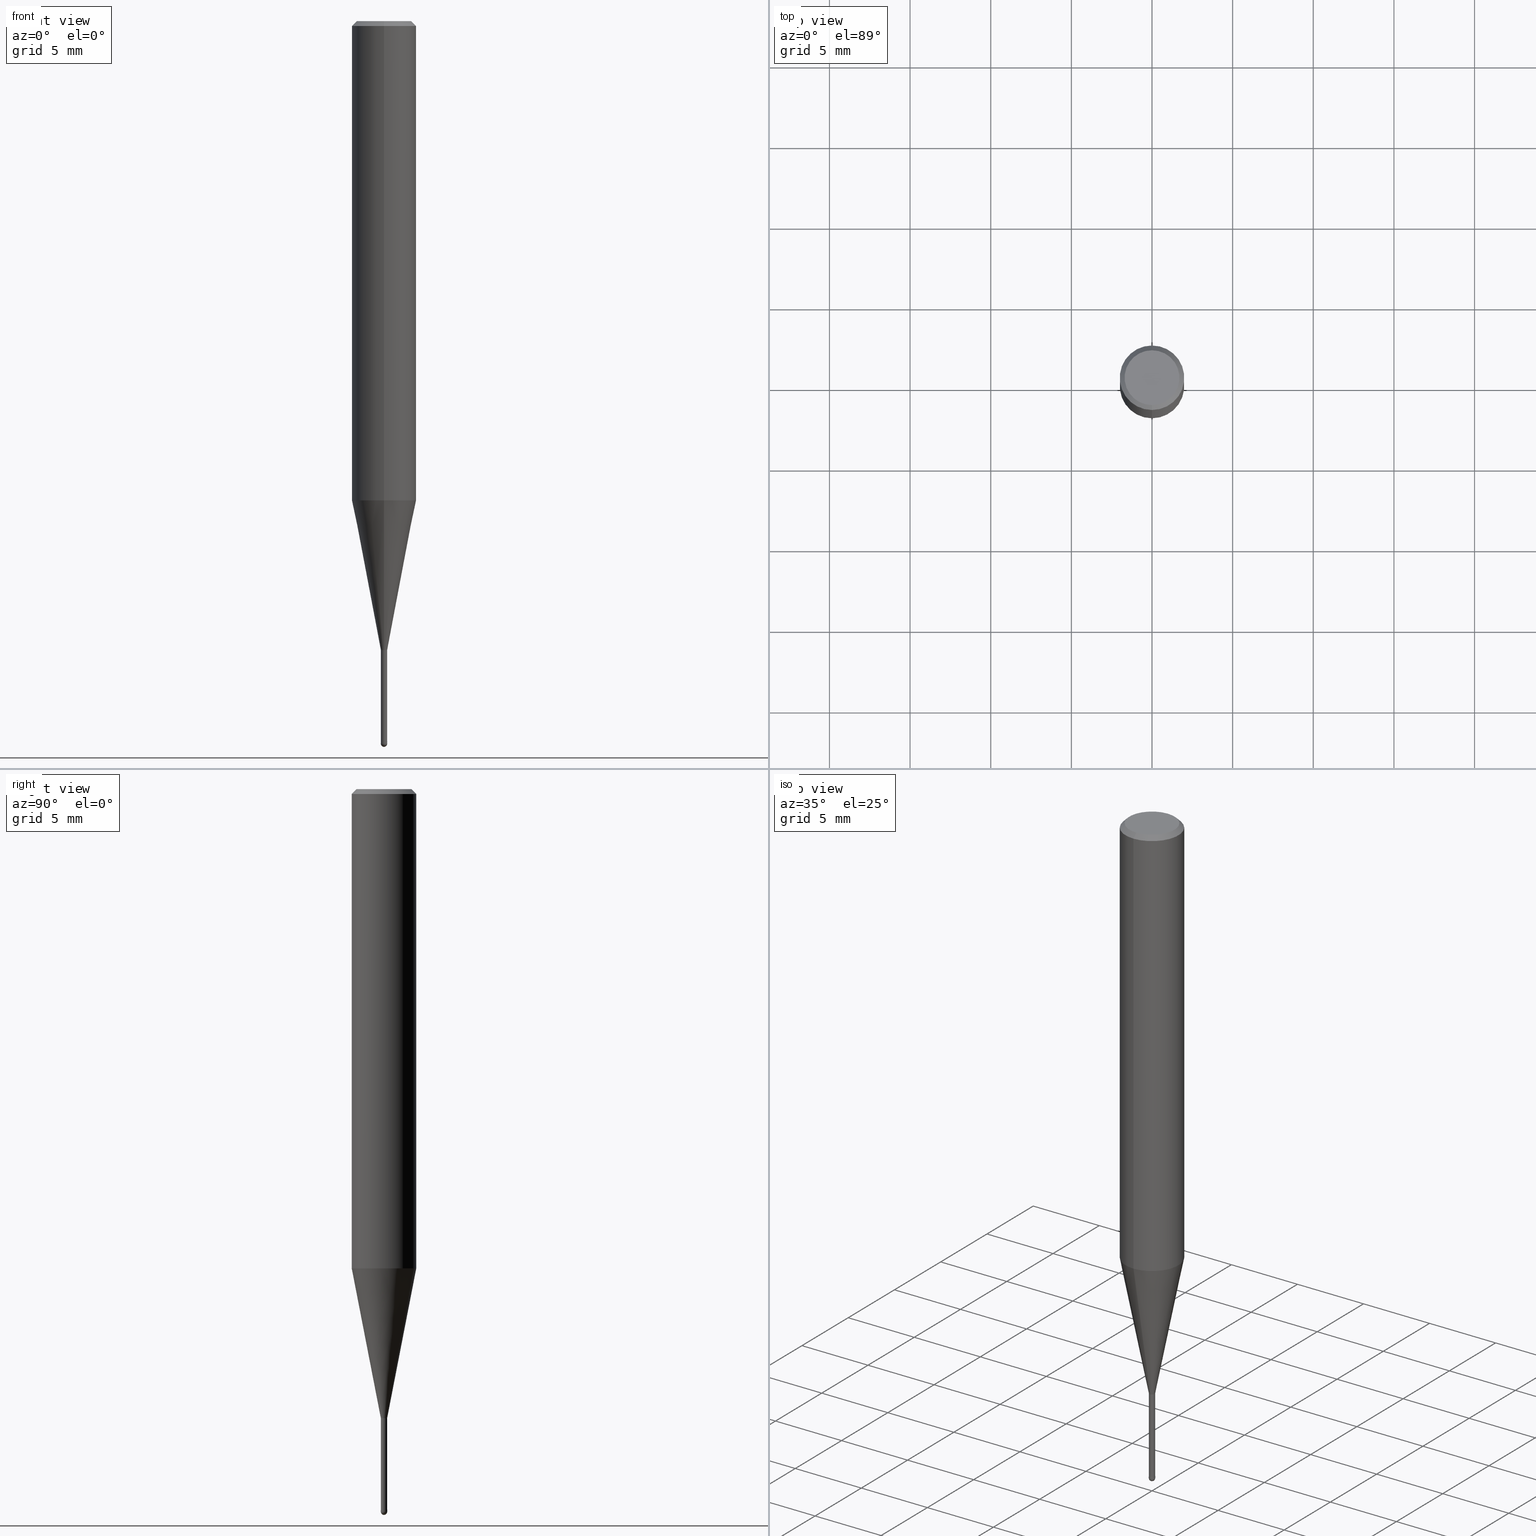
[diagram: canonical four-view strip — front | top / right | iso, engineering-drawing reading convention]
A machine part, canonical four-view strip (front | top / right | iso — engineering-drawing reading convention). The complete STEP part file that produces these views, byte-faithful:
ISO-10303-21;
HEADER;
FILE_DESCRIPTION(('no description'),'unknown implementation level');
FILE_NAME('CSELB2004-060-Huellk.stp','  ',('CIMSOURCE GmbH'),('CADClick - KiM GmbH - www.kimweb.de'),'unknown preprocess','ACIS','unknown authorization');
FILE_SCHEMA(('automotive_design'));
ENDSEC;
DATA;
#1=MECHANICAL_DESIGN_GEOMETRIC_PRESENTATION_REPRESENTATION(' ',(#14,#15,#16,#17,#18,#19,#20,#21,#22,#23,#24,#25,#26,#27,#28,#29,#30,#31,#32,#33,#34,#35,#36,#37,#38,#39,#40,#41,#42,#43,#44,#45,#46,#47,#48,#49,#50,#51,#52,#53,#54,#55,#56,#57,#58,#59,#60,#61,#62,#63,#64,#65,#66,#67,#68,#69,#70,#71,#72,#73,#74),#10);
#2=PRODUCT_DEFINITION_CONTEXT('',#75,'design');
#3=APPLICATION_PROTOCOL_DEFINITION('INTERNATIONAL STANDARD','automotive_design',1994,#75);
#4=PRODUCT_CATEGORY_RELATIONSHIP('NONE','NONE',#76,#77);
#5=SHAPE_DEFINITION_REPRESENTATION(#78,#79);
#6=PRODUCT_DEFINITION_CONTEXT('',#80,'design');
#7=APPLICATION_PROTOCOL_DEFINITION('INTERNATIONAL STANDARD','automotive_design',1994,#80);
#8=PRODUCT_CATEGORY_RELATIONSHIP('NONE','NONE',#81,#82);
#9=SHAPE_DEFINITION_REPRESENTATION(#83,#84);
#10= (GEOMETRIC_REPRESENTATION_CONTEXT(3)GLOBAL_UNCERTAINTY_ASSIGNED_CONTEXT((#87))GLOBAL_UNIT_ASSIGNED_CONTEXT((#89,#90,#91))REPRESENTATION_CONTEXT('NONE','WORKSPACE'));
#14=STYLED_ITEM('',(#93),#94);
#15=STYLED_ITEM('',(#95),#96);
#16=STYLED_ITEM('',(#97),#98);
#17=STYLED_ITEM('',(#99),#100);
#18=STYLED_ITEM('',(#101),#102);
#19=STYLED_ITEM('',(#103),#104);
#20=STYLED_ITEM('',(#105),#106);
#21=STYLED_ITEM('',(#107),#108);
#22=STYLED_ITEM('',(#109),#110);
#23=STYLED_ITEM('',(#111),#112);
#24=STYLED_ITEM('',(#113),#114);
#25=STYLED_ITEM('',(#115),#116);
#26=STYLED_ITEM('',(#117),#118);
#27=STYLED_ITEM('',(#119),#120);
#28=STYLED_ITEM('',(#121),#122);
#29=STYLED_ITEM('',(#123),#124);
#30=STYLED_ITEM('',(#125),#126);
#31=STYLED_ITEM('',(#127),#128);
#32=STYLED_ITEM('',(#129),#130);
#33=STYLED_ITEM('',(#131),#132);
#34=STYLED_ITEM('',(#133),#134);
#35=STYLED_ITEM('',(#135),#136);
#36=STYLED_ITEM('',(#137),#138);
#37=STYLED_ITEM('',(#139),#140);
#38=STYLED_ITEM('',(#141),#142);
#39=STYLED_ITEM('',(#143),#144);
#40=STYLED_ITEM('',(#145),#146);
#41=STYLED_ITEM('',(#147),#148);
#42=STYLED_ITEM('',(#149),#150);
#43=STYLED_ITEM('',(#151),#152);
#44=STYLED_ITEM('',(#153),#154);
#45=STYLED_ITEM('',(#155),#156);
#46=STYLED_ITEM('',(#157),#158);
#47=STYLED_ITEM('',(#159),#160);
#48=STYLED_ITEM('',(#161),#162);
#49=STYLED_ITEM('',(#163),#164);
#50=STYLED_ITEM('',(#165),#166);
#51=STYLED_ITEM('',(#167),#168);
#52=STYLED_ITEM('',(#169),#170);
#53=STYLED_ITEM('',(#171),#172);
#54=STYLED_ITEM('',(#173),#174);
#55=STYLED_ITEM('',(#175),#176);
#56=STYLED_ITEM('',(#177),#178);
#57=STYLED_ITEM('',(#179),#180);
#58=STYLED_ITEM('',(#181),#182);
#59=STYLED_ITEM('',(#183),#184);
#60=STYLED_ITEM('',(#185),#186);
#61=STYLED_ITEM('',(#187),#188);
#62=STYLED_ITEM('',(#189),#190);
#63=STYLED_ITEM('',(#191),#192);
#64=STYLED_ITEM('',(#193),#194);
#65=STYLED_ITEM('',(#195),#196);
#66=STYLED_ITEM('',(#197),#198);
#67=STYLED_ITEM('',(#199),#200);
#68=STYLED_ITEM('',(#201),#202);
#69=STYLED_ITEM('',(#203),#204);
#70=STYLED_ITEM('',(#205),#206);
#71=STYLED_ITEM('',(#207),#208);
#72=STYLED_ITEM('',(#209),#210);
#73=STYLED_ITEM('',(#211),#212);
#74=STYLED_ITEM('',(#213),#214);
#75=APPLICATION_CONTEXT(' ');
#76=PRODUCT_CATEGORY('part','NONE');
#77=PRODUCT_RELATED_PRODUCT_CATEGORY('detail',' ',(#215));
#78=PRODUCT_DEFINITION_SHAPE('NONE','NONE',#216);
#79=ADVANCED_BREP_SHAPE_REPRESENTATION('1',(#192,#217),#10);
#80=APPLICATION_CONTEXT(' ');
#81=PRODUCT_CATEGORY('part','NONE');
#82=PRODUCT_RELATED_PRODUCT_CATEGORY('detail',' ',(#218));
#83=PRODUCT_DEFINITION_SHAPE('NONE','NONE',#219);
#84=ADVANCED_BREP_SHAPE_REPRESENTATION('2',(#198,#220),#10);
#87=UNCERTAINTY_MEASURE_WITH_UNIT(LENGTH_MEASURE(1.0E-006),#89,'','');
#89= (CONVERSION_BASED_UNIT('MILLIMETRE',#223)LENGTH_UNIT()NAMED_UNIT(#226));
#90= (NAMED_UNIT(#228)PLANE_ANGLE_UNIT()SI_UNIT($,.RADIAN.));
#91= (NAMED_UNIT(#228)SOLID_ANGLE_UNIT()SI_UNIT($,.STERADIAN.));
#93=PRESENTATION_STYLE_ASSIGNMENT((#234));
#94=VERTEX_POINT('',#235);
#95=PRESENTATION_STYLE_ASSIGNMENT((#236));
#96=VERTEX_POINT('',#237);
#97=PRESENTATION_STYLE_ASSIGNMENT((#238));
#98=EDGE_CURVE('',#124,#128,#239,.T.);
#99=PRESENTATION_STYLE_ASSIGNMENT((#240));
#100=EDGE_CURVE('',#158,#94,#241,.T.);
#101=PRESENTATION_STYLE_ASSIGNMENT((#242));
#102=EDGE_CURVE('',#212,#204,#243,.T.);
#103=PRESENTATION_STYLE_ASSIGNMENT((#244));
#104=ADVANCED_FACE('',(#245,#246),#247,.T.);
#105=PRESENTATION_STYLE_ASSIGNMENT((#248));
#106=VERTEX_POINT('',#249);
#107=PRESENTATION_STYLE_ASSIGNMENT((#250));
#108=EDGE_CURVE('',#186,#202,#251,.T.);
#109=PRESENTATION_STYLE_ASSIGNMENT((#252));
#110=ADVANCED_FACE('',(#253),#254,.T.);
#111=PRESENTATION_STYLE_ASSIGNMENT((#255));
#112=VERTEX_POINT('',#256);
#113=PRESENTATION_STYLE_ASSIGNMENT((#257));
#114=EDGE_CURVE('',#112,#126,#258,.T.);
#115=PRESENTATION_STYLE_ASSIGNMENT((#259));
#116=EDGE_CURVE('',#204,#212,#260,.T.);
#117=PRESENTATION_STYLE_ASSIGNMENT((#261));
#118=ADVANCED_FACE('',(#262),#263,.T.);
#119=PRESENTATION_STYLE_ASSIGNMENT((#264));
#120=EDGE_CURVE('',#158,#212,#265,.T.);
#121=PRESENTATION_STYLE_ASSIGNMENT((#266));
#122=EDGE_CURVE('',#208,#96,#267,.T.);
#123=PRESENTATION_STYLE_ASSIGNMENT((#268));
#124=VERTEX_POINT('',#269);
#125=PRESENTATION_STYLE_ASSIGNMENT((#270));
#126=VERTEX_POINT('',#271);
#127=PRESENTATION_STYLE_ASSIGNMENT((#272));
#128=VERTEX_POINT('',#273);
#129=PRESENTATION_STYLE_ASSIGNMENT((#274));
#130=EDGE_CURVE('',#186,#96,#275,.T.);
#131=PRESENTATION_STYLE_ASSIGNMENT((#276));
#132=ADVANCED_FACE('',(#277),#278,.T.);
#133=PRESENTATION_STYLE_ASSIGNMENT((#279));
#134=ADVANCED_FACE('',(#280),#281,.T.);
#135=PRESENTATION_STYLE_ASSIGNMENT((#282));
#136=VERTEX_POINT('',#283);
#137=PRESENTATION_STYLE_ASSIGNMENT((#284));
#138=EDGE_CURVE('',#210,#136,#285,.T.);
#139=PRESENTATION_STYLE_ASSIGNMENT((#286));
#140=EDGE_CURVE('',#128,#124,#287,.T.);
#141=PRESENTATION_STYLE_ASSIGNMENT((#288));
#142=EDGE_CURVE('',#208,#202,#289,.T.);
#143=PRESENTATION_STYLE_ASSIGNMENT((#290));
#144=ADVANCED_FACE('',(#291),#292,.T.);
#145=PRESENTATION_STYLE_ASSIGNMENT((#293));
#146=EDGE_CURVE('',#204,#94,#294,.T.);
#147=PRESENTATION_STYLE_ASSIGNMENT((#295));
#148=ADVANCED_FACE('',(#296),#297,.T.);
#149=PRESENTATION_STYLE_ASSIGNMENT((#298));
#150=EDGE_CURVE('',#94,#196,#299,.T.);
#151=PRESENTATION_STYLE_ASSIGNMENT((#300));
#152=EDGE_CURVE('',#96,#126,#301,.T.);
#153=PRESENTATION_STYLE_ASSIGNMENT((#302));
#154=EDGE_CURVE('',#202,#186,#303,.T.);
#155=PRESENTATION_STYLE_ASSIGNMENT((#304));
#156=ADVANCED_FACE('',(#305),#306,.T.);
#157=PRESENTATION_STYLE_ASSIGNMENT((#307));
#158=VERTEX_POINT('',#308);
#159=PRESENTATION_STYLE_ASSIGNMENT((#309));
#160=EDGE_CURVE('',#112,#208,#310,.T.);
#161=PRESENTATION_STYLE_ASSIGNMENT((#311));
#162=ADVANCED_FACE('',(#312),#313,.T.);
#163=PRESENTATION_STYLE_ASSIGNMENT((#314));
#164=ADVANCED_FACE('',(#315),#316,.T.);
#165=PRESENTATION_STYLE_ASSIGNMENT((#317));
#166=EDGE_CURVE('',#106,#158,#318,.T.);
#167=PRESENTATION_STYLE_ASSIGNMENT((#319));
#168=EDGE_CURVE('',#196,#106,#320,.T.);
#169=PRESENTATION_STYLE_ASSIGNMENT((#321));
#170=EDGE_CURVE('',#124,#128,#322,.T.);
#171=PRESENTATION_STYLE_ASSIGNMENT((#323));
#172=EDGE_CURVE('',#126,#112,#324,.T.);
#173=PRESENTATION_STYLE_ASSIGNMENT((#325));
#174=ADVANCED_FACE('',(#326),#327,.T.);
#175=PRESENTATION_STYLE_ASSIGNMENT((#328));
#176=EDGE_CURVE('',#210,#128,#329,.T.);
#177=PRESENTATION_STYLE_ASSIGNMENT((#330));
#178=EDGE_CURVE('',#106,#196,#331,.T.);
#179=PRESENTATION_STYLE_ASSIGNMENT((#332));
#180=EDGE_CURVE('',#136,#210,#333,.T.);
#181=PRESENTATION_STYLE_ASSIGNMENT((#334));
#182=ADVANCED_FACE('',(#335),#336,.T.);
#183=PRESENTATION_STYLE_ASSIGNMENT((#337));
#184=ADVANCED_FACE('',(#338),#339,.T.);
#185=PRESENTATION_STYLE_ASSIGNMENT((#340));
#186=VERTEX_POINT('',#341);
#187=PRESENTATION_STYLE_ASSIGNMENT((#342));
#188=EDGE_CURVE('',#124,#136,#343,.T.);
#189=PRESENTATION_STYLE_ASSIGNMENT((#344));
#190=EDGE_CURVE('',#94,#158,#345,.T.);
#191=PRESENTATION_STYLE_ASSIGNMENT((#346));
#192=MANIFOLD_SOLID_BREP('1',#347);
#193=PRESENTATION_STYLE_ASSIGNMENT((#348));
#194=EDGE_CURVE('',#96,#208,#349,.T.);
#195=PRESENTATION_STYLE_ASSIGNMENT((#350));
#196=VERTEX_POINT('',#351);
#197=PRESENTATION_STYLE_ASSIGNMENT((#352));
#198=MANIFOLD_SOLID_BREP('2',#353);
#199=PRESENTATION_STYLE_ASSIGNMENT((#354));
#200=ADVANCED_FACE('',(#355),#356,.T.);
#201=PRESENTATION_STYLE_ASSIGNMENT((#357));
#202=VERTEX_POINT('',#358);
#203=PRESENTATION_STYLE_ASSIGNMENT((#359));
#204=VERTEX_POINT('',#360);
#205=PRESENTATION_STYLE_ASSIGNMENT((#361));
#206=ADVANCED_FACE('',(#362),#363,.T.);
#207=PRESENTATION_STYLE_ASSIGNMENT((#364));
#208=VERTEX_POINT('',#365);
#209=PRESENTATION_STYLE_ASSIGNMENT((#366));
#210=VERTEX_POINT('',#367);
#211=PRESENTATION_STYLE_ASSIGNMENT((#368));
#212=VERTEX_POINT('',#369);
#213=PRESENTATION_STYLE_ASSIGNMENT((#370));
#214=ADVANCED_FACE('',(#371),#372,.T.);
#215=PRODUCT('1','1','PART-1-DESC',(#373));
#216=PRODUCT_DEFINITION('NONE','NONE',#374,#2);
#217=AXIS2_PLACEMENT_3D('',#375,#376,#377);
#218=PRODUCT('2','2','PART-2-DESC',(#378));
#219=PRODUCT_DEFINITION('NONE','NONE',#379,#6);
#220=AXIS2_PLACEMENT_3D('',#380,#381,#382);
#223=LENGTH_MEASURE_WITH_UNIT(LENGTH_MEASURE(1.0),#383);
#226=DIMENSIONAL_EXPONENTS(1.0,0.0,0.0,0.0,0.0,0.0,0.0);
#228=DIMENSIONAL_EXPONENTS(0.0,0.0,0.0,0.0,0.0,0.0,0.0);
#234=POINT_STYLE(' ',#384,POSITIVE_LENGTH_MEASURE(1.0E-006),#385);
#235=CARTESIAN_POINT('',(2.44921270764475E-016,-2.0,-0.300000000000001));
#236=POINT_STYLE(' ',#386,POSITIVE_LENGTH_MEASURE(1.0E-006),#387);
#237=CARTESIAN_POINT('',(2.38737008677672E-017,-0.19495,-39.0));
#238=CURVE_STYLE('',#388,POSITIVE_LENGTH_MEASURE(1.0E-006),#389);
#239=CIRCLE('',#390,0.2);
#240=CURVE_STYLE('',#391,POSITIVE_LENGTH_MEASURE(1.0E-006),#392);
#241=CIRCLE('',#393,2.0);
#242=CURVE_STYLE('',#394,POSITIVE_LENGTH_MEASURE(1.0E-006),#395);
#243=CIRCLE('',#396,2.0);
#244=SURFACE_STYLE_USAGE(.BOTH.,#397);
#245=FACE_OUTER_BOUND('',#398,.T.);
#246=FACE_BOUND('',#399,.T.);
#247=PLANE('',#400);
#248=POINT_STYLE(' ',#401,POSITIVE_LENGTH_MEASURE(1.0E-006),#402);
#249=CARTESIAN_POINT('',(0.0,1.7,0.0));
#250=CURVE_STYLE('',#403,POSITIVE_LENGTH_MEASURE(1.0E-006),#404);
#251=CIRCLE('',#405,0.19495);
#252=SURFACE_STYLE_USAGE(.BOTH.,#406);
#253=FACE_OUTER_BOUND('',#407,.T.);
#254=PLANE('',#408);
#255=POINT_STYLE(' ',#409,POSITIVE_LENGTH_MEASURE(1.0E-006),#410);
#256=CARTESIAN_POINT('',(0.0,1.99995,-29.714));
#257=CURVE_STYLE('',#411,POSITIVE_LENGTH_MEASURE(1.0E-006),#412);
#258=CIRCLE('',#413,1.99995);
#259=CURVE_STYLE('',#414,POSITIVE_LENGTH_MEASURE(1.0E-006),#415);
#260=CIRCLE('',#416,2.0);
#261=SURFACE_STYLE_USAGE(.BOTH.,#417);
#262=FACE_OUTER_BOUND('',#418,.T.);
#263=CONICAL_SURFACE('',#419,1.09745,0.191984604054908);
#264=CURVE_STYLE('',#420,POSITIVE_LENGTH_MEASURE(1.0E-006),#421);
#265=LINE('',#422,#423);
#266=CURVE_STYLE('',#424,POSITIVE_LENGTH_MEASURE(1.0E-006),#425);
#267=CIRCLE('',#426,0.19495);
#268=POINT_STYLE(' ',#427,POSITIVE_LENGTH_MEASURE(1.0E-006),#428);
#269=CARTESIAN_POINT('',(2.44921270764475E-017,-0.2,-44.8));
#270=POINT_STYLE(' ',#429,POSITIVE_LENGTH_MEASURE(1.0E-006),#430);
#271=CARTESIAN_POINT('',(2.44915147732706E-016,-1.99995,-29.714));
#272=POINT_STYLE(' ',#431,POSITIVE_LENGTH_MEASURE(1.0E-006),#432);
#273=CARTESIAN_POINT('',(0.0,0.2,-44.8));
#274=CURVE_STYLE('',#433,POSITIVE_LENGTH_MEASURE(1.0E-006),#434);
#275=LINE('',#435,#436);
#276=SURFACE_STYLE_USAGE(.BOTH.,#437);
#277=FACE_OUTER_BOUND('',#438,.T.);
#278=CYLINDRICAL_SURFACE('',#439,2.0);
#279=SURFACE_STYLE_USAGE(.BOTH.,#440);
#280=FACE_OUTER_BOUND('',#441,.T.);
#281=CONICAL_SURFACE('',#442,0.19995,0.000833333140432319);
#282=POINT_STYLE(' ',#443,POSITIVE_LENGTH_MEASURE(1.0E-006),#444);
#283=CARTESIAN_POINT('',(2.44798810129093E-017,-0.1999,-44.68));
#284=CURVE_STYLE('',#445,POSITIVE_LENGTH_MEASURE(1.0E-006),#446);
#285=CIRCLE('',#447,0.1999);
#286=CURVE_STYLE('',#448,POSITIVE_LENGTH_MEASURE(1.0E-006),#449);
#287=CIRCLE('',#450,0.2);
#288=CURVE_STYLE('',#451,POSITIVE_LENGTH_MEASURE(1.0E-006),#452);
#289=LINE('',#453,#454);
#290=SURFACE_STYLE_USAGE(.BOTH.,#455);
#291=FACE_OUTER_BOUND('',#456,.T.);
#292=CYLINDRICAL_SURFACE('',#457,0.19495);
#293=CURVE_STYLE('',#458,POSITIVE_LENGTH_MEASURE(1.0E-006),#459);
#294=LINE('',#460,#461);
#295=SURFACE_STYLE_USAGE(.BOTH.,#462);
#296=FACE_OUTER_BOUND('',#463,.T.);
#297=CONICAL_SURFACE('',#464,1.85,0.785398163397447);
#298=CURVE_STYLE('',#465,POSITIVE_LENGTH_MEASURE(1.0E-006),#466);
#299=LINE('',#467,#468);
#300=CURVE_STYLE('',#469,POSITIVE_LENGTH_MEASURE(1.0E-006),#470);
#301=LINE('',#471,#472);
#302=CURVE_STYLE('',#473,POSITIVE_LENGTH_MEASURE(1.0E-006),#474);
#303=CIRCLE('',#475,0.19495);
#304=SURFACE_STYLE_USAGE(.BOTH.,#476);
#305=FACE_OUTER_BOUND('',#477,.T.);
#306=PLANE('',#478);
#307=POINT_STYLE(' ',#479,POSITIVE_LENGTH_MEASURE(1.0E-006),#480);
#308=CARTESIAN_POINT('',(0.0,2.0,-0.300000000000001));
#309=CURVE_STYLE('',#481,POSITIVE_LENGTH_MEASURE(1.0E-006),#482);
#310=LINE('',#483,#484);
#311=SURFACE_STYLE_USAGE(.BOTH.,#485);
#312=FACE_OUTER_BOUND('',#486,.T.);
#313=CONICAL_SURFACE('',#487,1.09745,0.191984604054908);
#314=SURFACE_STYLE_USAGE(.BOTH.,#488);
#315=FACE_OUTER_BOUND('',#489,.T.);
#316=SPHERICAL_SURFACE('',#490,0.2);
#317=CURVE_STYLE('',#491,POSITIVE_LENGTH_MEASURE(1.0E-006),#492);
#318=LINE('',#493,#494);
#319=CURVE_STYLE('',#495,POSITIVE_LENGTH_MEASURE(1.0E-006),#496);
#320=CIRCLE('',#497,1.7);
#321=CURVE_STYLE('',#498,POSITIVE_LENGTH_MEASURE(1.0E-006),#499);
#322=CIRCLE('',#500,0.2);
#323=CURVE_STYLE('',#501,POSITIVE_LENGTH_MEASURE(1.0E-006),#502);
#324=CIRCLE('',#503,1.99995);
#325=SURFACE_STYLE_USAGE(.BOTH.,#504);
#326=FACE_OUTER_BOUND('',#505,.T.);
#327=PLANE('',#506);
#328=CURVE_STYLE('',#507,POSITIVE_LENGTH_MEASURE(1.0E-006),#508);
#329=LINE('',#509,#510);
#330=CURVE_STYLE('',#511,POSITIVE_LENGTH_MEASURE(1.0E-006),#512);
#331=CIRCLE('',#513,1.7);
#332=CURVE_STYLE('',#514,POSITIVE_LENGTH_MEASURE(1.0E-006),#515);
#333=CIRCLE('',#516,0.1999);
#334=SURFACE_STYLE_USAGE(.BOTH.,#517);
#335=FACE_OUTER_BOUND('',#518,.T.);
#336=CYLINDRICAL_SURFACE('',#519,0.19495);
#337=SURFACE_STYLE_USAGE(.BOTH.,#520);
#338=FACE_OUTER_BOUND('',#521,.T.);
#339=CYLINDRICAL_SURFACE('',#522,2.0);
#340=POINT_STYLE(' ',#523,POSITIVE_LENGTH_MEASURE(1.0E-006),#524);
#341=CARTESIAN_POINT('',(2.38737008677672E-017,-0.19495,-44.68));
#342=CURVE_STYLE('',#525,POSITIVE_LENGTH_MEASURE(1.0E-006),#526);
#343=LINE('',#527,#528);
#344=CURVE_STYLE('',#529,POSITIVE_LENGTH_MEASURE(1.0E-006),#530);
#345=CIRCLE('',#531,2.0);
#346=SURFACE_STYLE_USAGE(.BOTH.,#532);
#347=CLOSED_SHELL('',(#144,#118,#184,#148,#104,#156,#200,#132,#162,#182,#174));
#348=CURVE_STYLE('',#533,POSITIVE_LENGTH_MEASURE(1.0E-006),#534);
#349=CIRCLE('',#535,0.19495);
#350=POINT_STYLE(' ',#536,POSITIVE_LENGTH_MEASURE(1.0E-006),#537);
#351=CARTESIAN_POINT('',(2.08183080149804E-016,-1.7,0.0));
#352=SURFACE_STYLE_USAGE(.BOTH.,#538);
#353=CLOSED_SHELL('',(#164,#134,#110,#206,#214));
#354=SURFACE_STYLE_USAGE(.BOTH.,#539);
#355=FACE_OUTER_BOUND('',#540,.T.);
#356=CONICAL_SURFACE('',#541,1.85,0.785398163397447);
#357=POINT_STYLE(' ',#542,POSITIVE_LENGTH_MEASURE(1.0E-006),#543);
#358=CARTESIAN_POINT('',(0.0,0.19495,-44.68));
#359=POINT_STYLE(' ',#544,POSITIVE_LENGTH_MEASURE(1.0E-006),#545);
#360=CARTESIAN_POINT('',(2.44921270764475E-016,-2.0,-29.714));
#361=SURFACE_STYLE_USAGE(.BOTH.,#546);
#362=FACE_OUTER_BOUND('',#547,.T.);
#363=CONICAL_SURFACE('',#548,0.19995,0.000833333140432319);
#364=POINT_STYLE(' ',#549,POSITIVE_LENGTH_MEASURE(1.0E-006),#550);
#365=CARTESIAN_POINT('',(0.0,0.19495,-39.0));
#366=POINT_STYLE(' ',#551,POSITIVE_LENGTH_MEASURE(1.0E-006),#552);
#367=CARTESIAN_POINT('',(0.0,0.1999,-44.68));
#368=POINT_STYLE(' ',#553,POSITIVE_LENGTH_MEASURE(1.0E-006),#554);
#369=CARTESIAN_POINT('',(0.0,2.0,-29.714));
#370=SURFACE_STYLE_USAGE(.BOTH.,#555);
#371=FACE_OUTER_BOUND('',#556,.T.);
#372=SPHERICAL_SURFACE('',#557,0.2);
#373=PRODUCT_CONTEXT('',#75,'mechanical');
#374=PRODUCT_DEFINITION_FORMATION_WITH_SPECIFIED_SOURCE(' ','NONE',#215,.NOT_KNOWN.);
#375=CARTESIAN_POINT('',(0.0,0.0,0.0));
#376=DIRECTION('',(0.0,0.0,1.0));
#377=DIRECTION('',(1.0,0.0,0.0));
#378=PRODUCT_CONTEXT('',#80,'mechanical');
#379=PRODUCT_DEFINITION_FORMATION_WITH_SPECIFIED_SOURCE(' ','NONE',#218,.NOT_KNOWN.);
#380=CARTESIAN_POINT('',(0.0,0.0,0.0));
#381=DIRECTION('',(0.0,0.0,1.0));
#382=DIRECTION('',(1.0,0.0,0.0));
#383= (NAMED_UNIT(#226)LENGTH_UNIT()SI_UNIT(.MILLI.,.METRE.));
#384=PRE_DEFINED_MARKER('');
#385=COLOUR_RGB('',0.498039215803146,0.498039215803146,0.498039215803146);
#386=PRE_DEFINED_MARKER('');
#387=COLOUR_RGB('',0.498039215803146,0.498039215803146,0.498039215803146);
#388=DRAUGHTING_PRE_DEFINED_CURVE_FONT('continuous');
#389=COLOUR_RGB('',0.800000011920929,0.800000011920929,0.800000011920929);
#390=AXIS2_PLACEMENT_3D('',#559,#560,#561);
#391=DRAUGHTING_PRE_DEFINED_CURVE_FONT('continuous');
#392=COLOUR_RGB('',0.498039215803146,0.498039215803146,0.498039215803146);
#393=AXIS2_PLACEMENT_3D('',#562,#563,#564);
#394=DRAUGHTING_PRE_DEFINED_CURVE_FONT('continuous');
#395=COLOUR_RGB('',0.498039215803146,0.498039215803146,0.498039215803146);
#396=AXIS2_PLACEMENT_3D('',#565,#566,#567);
#397=SURFACE_SIDE_STYLE('',(#568));
#398=EDGE_LOOP('',(#569,#570));
#399=EDGE_LOOP('',(#571,#572));
#400=AXIS2_PLACEMENT_3D('',#573,#574,#575);
#401=PRE_DEFINED_MARKER('');
#402=COLOUR_RGB('',0.498039215803146,0.498039215803146,0.498039215803146);
#403=DRAUGHTING_PRE_DEFINED_CURVE_FONT('continuous');
#404=COLOUR_RGB('',0.498039215803146,0.498039215803146,0.498039215803146);
#405=AXIS2_PLACEMENT_3D('',#576,#577,#578);
#406=SURFACE_SIDE_STYLE('',(#579));
#407=EDGE_LOOP('',(#580,#581));
#408=AXIS2_PLACEMENT_3D('',#582,#583,#584);
#409=PRE_DEFINED_MARKER('');
#410=COLOUR_RGB('',0.498039215803146,0.498039215803146,0.498039215803146);
#411=DRAUGHTING_PRE_DEFINED_CURVE_FONT('continuous');
#412=COLOUR_RGB('',0.498039215803146,0.498039215803146,0.498039215803146);
#413=AXIS2_PLACEMENT_3D('',#585,#586,#587);
#414=DRAUGHTING_PRE_DEFINED_CURVE_FONT('continuous');
#415=COLOUR_RGB('',0.498039215803146,0.498039215803146,0.498039215803146);
#416=AXIS2_PLACEMENT_3D('',#588,#589,#590);
#417=SURFACE_SIDE_STYLE('',(#591));
#418=EDGE_LOOP('',(#592,#593,#594,#595));
#419=AXIS2_PLACEMENT_3D('',#596,#597,#598);
#420=DRAUGHTING_PRE_DEFINED_CURVE_FONT('continuous');
#421=COLOUR_RGB('',0.498039215803146,0.498039215803146,0.498039215803146);
#422=CARTESIAN_POINT('',(-2.44921270764475E-016,2.0,-15.007));
#423=VECTOR('',#599,1.0);
#424=DRAUGHTING_PRE_DEFINED_CURVE_FONT('continuous');
#425=COLOUR_RGB('',0.498039215803146,0.498039215803146,0.498039215803146);
#426=AXIS2_PLACEMENT_3D('',#600,#601,#602);
#427=PRE_DEFINED_MARKER('');
#428=COLOUR_RGB('',0.800000011920929,0.800000011920929,0.800000011920929);
#429=PRE_DEFINED_MARKER('');
#430=COLOUR_RGB('',0.498039215803146,0.498039215803146,0.498039215803146);
#431=PRE_DEFINED_MARKER('');
#432=COLOUR_RGB('',0.800000011920929,0.800000011920929,0.800000011920929);
#433=DRAUGHTING_PRE_DEFINED_CURVE_FONT('continuous');
#434=COLOUR_RGB('',0.498039215803146,0.498039215803146,0.498039215803146);
#435=CARTESIAN_POINT('',(2.38737008677672E-017,-0.19495,-41.84));
#436=VECTOR('',#603,1.0);
#437=SURFACE_SIDE_STYLE('',(#604));
#438=EDGE_LOOP('',(#605,#606,#607,#608));
#439=AXIS2_PLACEMENT_3D('',#609,#610,#611);
#440=SURFACE_SIDE_STYLE('',(#612));
#441=EDGE_LOOP('',(#613,#614,#615,#616));
#442=AXIS2_PLACEMENT_3D('',#617,#618,#619);
#443=PRE_DEFINED_MARKER('');
#444=COLOUR_RGB('',0.800000011920929,0.800000011920929,0.800000011920929);
#445=DRAUGHTING_PRE_DEFINED_CURVE_FONT('continuous');
#446=COLOUR_RGB('',0.800000011920929,0.800000011920929,0.800000011920929);
#447=AXIS2_PLACEMENT_3D('',#620,#621,#622);
#448=DRAUGHTING_PRE_DEFINED_CURVE_FONT('continuous');
#449=COLOUR_RGB('',0.800000011920929,0.800000011920929,0.800000011920929);
#450=AXIS2_PLACEMENT_3D('',#623,#624,#625);
#451=DRAUGHTING_PRE_DEFINED_CURVE_FONT('continuous');
#452=COLOUR_RGB('',0.498039215803146,0.498039215803146,0.498039215803146);
#453=CARTESIAN_POINT('',(-2.38737008677672E-017,0.19495,-41.84));
#454=VECTOR('',#626,1.0);
#455=SURFACE_SIDE_STYLE('',(#627));
#456=EDGE_LOOP('',(#628,#629,#630,#631));
#457=AXIS2_PLACEMENT_3D('',#632,#633,#634);
#458=DRAUGHTING_PRE_DEFINED_CURVE_FONT('continuous');
#459=COLOUR_RGB('',0.498039215803146,0.498039215803146,0.498039215803146);
#460=CARTESIAN_POINT('',(2.44921270764475E-016,-2.0,-15.007));
#461=VECTOR('',#635,1.0);
#462=SURFACE_SIDE_STYLE('',(#636));
#463=EDGE_LOOP('',(#637,#638,#639,#640));
#464=AXIS2_PLACEMENT_3D('',#641,#642,#643);
#465=DRAUGHTING_PRE_DEFINED_CURVE_FONT('continuous');
#466=COLOUR_RGB('',0.498039215803146,0.498039215803146,0.498039215803146);
#467=CARTESIAN_POINT('',(2.2655217545714E-016,-1.85,-0.149999999999999));
#468=VECTOR('',#644,1.0);
#469=DRAUGHTING_PRE_DEFINED_CURVE_FONT('continuous');
#470=COLOUR_RGB('',0.498039215803146,0.498039215803146,0.498039215803146);
#471=CARTESIAN_POINT('',(1.34394424300237E-016,-1.09745,-34.357));
#472=VECTOR('',#645,1.0);
#473=DRAUGHTING_PRE_DEFINED_CURVE_FONT('continuous');
#474=COLOUR_RGB('',0.498039215803146,0.498039215803146,0.498039215803146);
#475=AXIS2_PLACEMENT_3D('',#646,#647,#648);
#476=SURFACE_SIDE_STYLE('',(#649));
#477=EDGE_LOOP('',(#650,#651));
#478=AXIS2_PLACEMENT_3D('',#652,#653,#654);
#479=PRE_DEFINED_MARKER('');
#480=COLOUR_RGB('',0.498039215803146,0.498039215803146,0.498039215803146);
#481=DRAUGHTING_PRE_DEFINED_CURVE_FONT('continuous');
#482=COLOUR_RGB('',0.498039215803146,0.498039215803146,0.498039215803146);
#483=CARTESIAN_POINT('',(-1.34394424300237E-016,1.09745,-34.357));
#484=VECTOR('',#655,1.0);
#485=SURFACE_SIDE_STYLE('',(#656));
#486=EDGE_LOOP('',(#657,#658,#659,#660));
#487=AXIS2_PLACEMENT_3D('',#661,#662,#663);
#488=SURFACE_SIDE_STYLE('',(#664));
#489=EDGE_LOOP('',(#665,#666));
#490=AXIS2_PLACEMENT_3D('',#667,#668,#669);
#491=DRAUGHTING_PRE_DEFINED_CURVE_FONT('continuous');
#492=COLOUR_RGB('',0.498039215803146,0.498039215803146,0.498039215803146);
#493=CARTESIAN_POINT('',(-2.2655217545714E-016,1.85,-0.149999999999999));
#494=VECTOR('',#670,1.0);
#495=DRAUGHTING_PRE_DEFINED_CURVE_FONT('continuous');
#496=COLOUR_RGB('',0.498039215803146,0.498039215803146,0.498039215803146);
#497=AXIS2_PLACEMENT_3D('',#671,#672,#673);
#498=DRAUGHTING_PRE_DEFINED_CURVE_FONT('continuous');
#499=COLOUR_RGB('',0.800000011920929,0.800000011920929,0.800000011920929);
#500=AXIS2_PLACEMENT_3D('',#674,#675,#676);
#501=DRAUGHTING_PRE_DEFINED_CURVE_FONT('continuous');
#502=COLOUR_RGB('',0.498039215803146,0.498039215803146,0.498039215803146);
#503=AXIS2_PLACEMENT_3D('',#677,#678,#679);
#504=SURFACE_SIDE_STYLE('',(#680));
#505=EDGE_LOOP('',(#681,#682));
#506=AXIS2_PLACEMENT_3D('',#683,#684,#685);
#507=DRAUGHTING_PRE_DEFINED_CURVE_FONT('continuous');
#508=COLOUR_RGB('',0.800000011920929,0.800000011920929,0.800000011920929);
#509=CARTESIAN_POINT('',(-2.44860040446784E-017,0.19995,-44.74));
#510=VECTOR('',#686,1.0);
#511=DRAUGHTING_PRE_DEFINED_CURVE_FONT('continuous');
#512=COLOUR_RGB('',0.498039215803146,0.498039215803146,0.498039215803146);
#513=AXIS2_PLACEMENT_3D('',#687,#688,#689);
#514=DRAUGHTING_PRE_DEFINED_CURVE_FONT('continuous');
#515=COLOUR_RGB('',0.800000011920929,0.800000011920929,0.800000011920929);
#516=AXIS2_PLACEMENT_3D('',#690,#691,#692);
#517=SURFACE_SIDE_STYLE('',(#693));
#518=EDGE_LOOP('',(#694,#695,#696,#697));
#519=AXIS2_PLACEMENT_3D('',#698,#699,#700);
#520=SURFACE_SIDE_STYLE('',(#701));
#521=EDGE_LOOP('',(#702,#703,#704,#705));
#522=AXIS2_PLACEMENT_3D('',#706,#707,#708);
#523=PRE_DEFINED_MARKER('');
#524=COLOUR_RGB('',0.498039215803146,0.498039215803146,0.498039215803146);
#525=DRAUGHTING_PRE_DEFINED_CURVE_FONT('continuous');
#526=COLOUR_RGB('',0.800000011920929,0.800000011920929,0.800000011920929);
#527=CARTESIAN_POINT('',(2.44860040446784E-017,-0.19995,-44.74));
#528=VECTOR('',#709,1.0);
#529=DRAUGHTING_PRE_DEFINED_CURVE_FONT('continuous');
#530=COLOUR_RGB('',0.498039215803146,0.498039215803146,0.498039215803146);
#531=AXIS2_PLACEMENT_3D('',#710,#711,#712);
#532=SURFACE_SIDE_STYLE('',(#713));
#533=DRAUGHTING_PRE_DEFINED_CURVE_FONT('continuous');
#534=COLOUR_RGB('',0.498039215803146,0.498039215803146,0.498039215803146);
#535=AXIS2_PLACEMENT_3D('',#714,#715,#716);
#536=PRE_DEFINED_MARKER('');
#537=COLOUR_RGB('',0.498039215803146,0.498039215803146,0.498039215803146);
#538=SURFACE_SIDE_STYLE('',(#717));
#539=SURFACE_SIDE_STYLE('',(#718));
#540=EDGE_LOOP('',(#719,#720,#721,#722));
#541=AXIS2_PLACEMENT_3D('',#723,#724,#725);
#542=PRE_DEFINED_MARKER('');
#543=COLOUR_RGB('',0.498039215803146,0.498039215803146,0.498039215803146);
#544=PRE_DEFINED_MARKER('');
#545=COLOUR_RGB('',0.498039215803146,0.498039215803146,0.498039215803146);
#546=SURFACE_SIDE_STYLE('',(#726));
#547=EDGE_LOOP('',(#727,#728,#729,#730));
#548=AXIS2_PLACEMENT_3D('',#731,#732,#733);
#549=PRE_DEFINED_MARKER('');
#550=COLOUR_RGB('',0.498039215803146,0.498039215803146,0.498039215803146);
#551=PRE_DEFINED_MARKER('');
#552=COLOUR_RGB('',0.800000011920929,0.800000011920929,0.800000011920929);
#553=PRE_DEFINED_MARKER('');
#554=COLOUR_RGB('',0.498039215803146,0.498039215803146,0.498039215803146);
#555=SURFACE_SIDE_STYLE('',(#734));
#556=EDGE_LOOP('',(#735,#736));
#557=AXIS2_PLACEMENT_3D('',#737,#738,#739);
#559=CARTESIAN_POINT('',(0.0,0.0,-44.8));
#560=DIRECTION('',(1.0,0.0,1.22460635382236E-016));
#561=DIRECTION('',(-1.22460635382236E-016,0.0,1.0));
#562=CARTESIAN_POINT('',(0.0,0.0,-0.300000000000001));
#563=DIRECTION('',(0.0,0.0,-1.0));
#564=DIRECTION('',(0.0,1.0,0.0));
#565=CARTESIAN_POINT('',(0.0,0.0,-29.714));
#566=DIRECTION('',(0.0,0.0,-1.0));
#567=DIRECTION('',(0.0,1.0,0.0));
#568=SURFACE_STYLE_FILL_AREA(#740);
#569=ORIENTED_EDGE('',*,*,#102,.T.);
#570=ORIENTED_EDGE('',*,*,#116,.T.);
#571=ORIENTED_EDGE('',*,*,#114,.F.);
#572=ORIENTED_EDGE('',*,*,#172,.F.);
#573=CARTESIAN_POINT('',(0.0,1.0,-29.714));
#574=DIRECTION('',(0.0,0.0,-1.0));
#575=DIRECTION('',(0.0,1.0,0.0));
#576=CARTESIAN_POINT('',(0.0,0.0,-44.68));
#577=DIRECTION('',(0.0,0.0,-1.0));
#578=DIRECTION('',(0.0,1.0,0.0));
#579=SURFACE_STYLE_FILL_AREA(#741);
#580=ORIENTED_EDGE('',*,*,#138,.F.);
#581=ORIENTED_EDGE('',*,*,#180,.F.);
#582=CARTESIAN_POINT('',(0.0,0.09995,-44.68));
#583=DIRECTION('',(-0.0,0.0,1.0));
#584=DIRECTION('',(0.0,-1.0,0.0));
#585=CARTESIAN_POINT('',(0.0,0.0,-29.714));
#586=DIRECTION('',(0.0,0.0,-1.0));
#587=DIRECTION('',(0.0,1.0,0.0));
#588=CARTESIAN_POINT('',(0.0,0.0,-29.714));
#589=DIRECTION('',(0.0,0.0,-1.0));
#590=DIRECTION('',(0.0,1.0,0.0));
#591=SURFACE_STYLE_FILL_AREA(#742);
#592=ORIENTED_EDGE('',*,*,#160,.F.);
#593=ORIENTED_EDGE('',*,*,#114,.T.);
#594=ORIENTED_EDGE('',*,*,#152,.F.);
#595=ORIENTED_EDGE('',*,*,#122,.F.);
#596=CARTESIAN_POINT('',(0.0,0.0,-34.357));
#597=DIRECTION('',(-0.0,-0.0,1.0));
#598=DIRECTION('',(0.0,1.0,0.0));
#599=DIRECTION('',(0.0,0.0,-1.0));
#600=CARTESIAN_POINT('',(0.0,0.0,-39.0));
#601=DIRECTION('',(0.0,0.0,-1.0));
#602=DIRECTION('',(0.0,1.0,0.0));
#603=DIRECTION('',(-0.0,-0.0,1.0));
#604=SURFACE_STYLE_FILL_AREA(#743);
#605=ORIENTED_EDGE('',*,*,#120,.T.);
#606=ORIENTED_EDGE('',*,*,#116,.F.);
#607=ORIENTED_EDGE('',*,*,#146,.T.);
#608=ORIENTED_EDGE('',*,*,#190,.T.);
#609=CARTESIAN_POINT('',(0.0,0.0,-15.007));
#610=DIRECTION('',(-0.0,-0.0,1.0));
#611=DIRECTION('',(0.0,1.0,0.0));
#612=SURFACE_STYLE_FILL_AREA(#744);
#613=ORIENTED_EDGE('',*,*,#176,.F.);
#614=ORIENTED_EDGE('',*,*,#138,.T.);
#615=ORIENTED_EDGE('',*,*,#188,.F.);
#616=ORIENTED_EDGE('',*,*,#140,.F.);
#617=CARTESIAN_POINT('',(0.0,0.0,-44.74));
#618=DIRECTION('',(0.0,-0.0,-1.0));
#619=DIRECTION('',(0.0,1.0,0.0));
#620=CARTESIAN_POINT('',(0.0,0.0,-44.68));
#621=DIRECTION('',(0.0,0.0,-1.0));
#622=DIRECTION('',(0.0,1.0,0.0));
#623=CARTESIAN_POINT('',(0.0,0.0,-44.8));
#624=DIRECTION('',(0.0,0.0,-1.0));
#625=DIRECTION('',(0.0,1.0,0.0));
#626=DIRECTION('',(0.0,0.0,-1.0));
#627=SURFACE_STYLE_FILL_AREA(#745);
#628=ORIENTED_EDGE('',*,*,#142,.F.);
#629=ORIENTED_EDGE('',*,*,#122,.T.);
#630=ORIENTED_EDGE('',*,*,#130,.F.);
#631=ORIENTED_EDGE('',*,*,#154,.F.);
#632=CARTESIAN_POINT('',(0.0,0.0,-41.84));
#633=DIRECTION('',(-0.0,-0.0,1.0));
#634=DIRECTION('',(0.0,1.0,0.0));
#635=DIRECTION('',(-0.0,-0.0,1.0));
#636=SURFACE_STYLE_FILL_AREA(#746);
#637=ORIENTED_EDGE('',*,*,#166,.F.);
#638=ORIENTED_EDGE('',*,*,#178,.T.);
#639=ORIENTED_EDGE('',*,*,#150,.F.);
#640=ORIENTED_EDGE('',*,*,#100,.F.);
#641=CARTESIAN_POINT('',(0.0,0.0,-0.149999999999999));
#642=DIRECTION('',(0.0,-0.0,-1.0));
#643=DIRECTION('',(0.0,1.0,0.0));
#644=DIRECTION('',(-8.65927457071934E-017,0.707106781186546,0.707106781186549));
#645=DIRECTION('',(2.33663968307108E-017,-0.190807411359389,0.981627491348082));
#646=CARTESIAN_POINT('',(0.0,0.0,-44.68));
#647=DIRECTION('',(0.0,0.0,-1.0));
#648=DIRECTION('',(0.0,1.0,0.0));
#649=SURFACE_STYLE_FILL_AREA(#747);
#650=ORIENTED_EDGE('',*,*,#178,.F.);
#651=ORIENTED_EDGE('',*,*,#168,.F.);
#652=CARTESIAN_POINT('',(0.0,0.85,0.0));
#653=DIRECTION('',(-0.0,0.0,1.0));
#654=DIRECTION('',(0.0,-1.0,0.0));
#655=DIRECTION('',(2.33663968307108E-017,-0.190807411359389,-0.981627491348082));
#656=SURFACE_STYLE_FILL_AREA(#748);
#657=ORIENTED_EDGE('',*,*,#160,.T.);
#658=ORIENTED_EDGE('',*,*,#194,.F.);
#659=ORIENTED_EDGE('',*,*,#152,.T.);
#660=ORIENTED_EDGE('',*,*,#172,.T.);
#661=CARTESIAN_POINT('',(0.0,0.0,-34.357));
#662=DIRECTION('',(-0.0,-0.0,1.0));
#663=DIRECTION('',(0.0,1.0,0.0));
#664=SURFACE_STYLE_FILL_AREA(#749);
#665=ORIENTED_EDGE('',*,*,#98,.F.);
#666=ORIENTED_EDGE('',*,*,#170,.T.);
#667=CARTESIAN_POINT('',(0.0,0.0,-44.8));
#668=DIRECTION('',(0.0,1.0,0.0));
#669=DIRECTION('',(0.0,0.0,-1.0));
#670=DIRECTION('',(-8.65927457071934E-017,0.707106781186546,-0.707106781186549));
#671=CARTESIAN_POINT('',(0.0,0.0,0.0));
#672=DIRECTION('',(0.0,0.0,-1.0));
#673=DIRECTION('',(0.0,1.0,0.0));
#674=CARTESIAN_POINT('',(0.0,0.0,-44.8));
#675=DIRECTION('',(0.0,0.0,-1.0));
#676=DIRECTION('',(0.0,1.0,0.0));
#677=CARTESIAN_POINT('',(0.0,0.0,-29.714));
#678=DIRECTION('',(0.0,0.0,-1.0));
#679=DIRECTION('',(0.0,1.0,0.0));
#680=SURFACE_STYLE_FILL_AREA(#750);
#681=ORIENTED_EDGE('',*,*,#154,.T.);
#682=ORIENTED_EDGE('',*,*,#108,.T.);
#683=CARTESIAN_POINT('',(0.0,0.097475,-44.68));
#684=DIRECTION('',(0.0,0.0,-1.0));
#685=DIRECTION('',(0.0,1.0,0.0));
#686=DIRECTION('',(-1.02050494051022E-019,0.000833333043981772,-0.999999652777959));
#687=CARTESIAN_POINT('',(0.0,0.0,0.0));
#688=DIRECTION('',(0.0,0.0,-1.0));
#689=DIRECTION('',(0.0,1.0,0.0));
#690=CARTESIAN_POINT('',(0.0,0.0,-44.68));
#691=DIRECTION('',(0.0,0.0,-1.0));
#692=DIRECTION('',(0.0,1.0,0.0));
#693=SURFACE_STYLE_FILL_AREA(#751);
#694=ORIENTED_EDGE('',*,*,#142,.T.);
#695=ORIENTED_EDGE('',*,*,#108,.F.);
#696=ORIENTED_EDGE('',*,*,#130,.T.);
#697=ORIENTED_EDGE('',*,*,#194,.T.);
#698=CARTESIAN_POINT('',(0.0,0.0,-41.84));
#699=DIRECTION('',(-0.0,-0.0,1.0));
#700=DIRECTION('',(0.0,1.0,0.0));
#701=SURFACE_STYLE_FILL_AREA(#752);
#702=ORIENTED_EDGE('',*,*,#120,.F.);
#703=ORIENTED_EDGE('',*,*,#100,.T.);
#704=ORIENTED_EDGE('',*,*,#146,.F.);
#705=ORIENTED_EDGE('',*,*,#102,.F.);
#706=CARTESIAN_POINT('',(0.0,0.0,-15.007));
#707=DIRECTION('',(-0.0,-0.0,1.0));
#708=DIRECTION('',(0.0,1.0,0.0));
#709=DIRECTION('',(-1.02050494051022E-019,0.000833333043981772,0.999999652777959));
#710=CARTESIAN_POINT('',(0.0,0.0,-0.300000000000001));
#711=DIRECTION('',(0.0,0.0,-1.0));
#712=DIRECTION('',(0.0,1.0,0.0));
#713=SURFACE_STYLE_FILL_AREA(#753);
#714=CARTESIAN_POINT('',(0.0,0.0,-39.0));
#715=DIRECTION('',(0.0,0.0,-1.0));
#716=DIRECTION('',(0.0,1.0,0.0));
#717=SURFACE_STYLE_FILL_AREA(#754);
#718=SURFACE_STYLE_FILL_AREA(#755);
#719=ORIENTED_EDGE('',*,*,#166,.T.);
#720=ORIENTED_EDGE('',*,*,#190,.F.);
#721=ORIENTED_EDGE('',*,*,#150,.T.);
#722=ORIENTED_EDGE('',*,*,#168,.T.);
#723=CARTESIAN_POINT('',(0.0,0.0,-0.149999999999999));
#724=DIRECTION('',(0.0,-0.0,-1.0));
#725=DIRECTION('',(0.0,1.0,0.0));
#726=SURFACE_STYLE_FILL_AREA(#756);
#727=ORIENTED_EDGE('',*,*,#176,.T.);
#728=ORIENTED_EDGE('',*,*,#170,.F.);
#729=ORIENTED_EDGE('',*,*,#188,.T.);
#730=ORIENTED_EDGE('',*,*,#180,.T.);
#731=CARTESIAN_POINT('',(0.0,0.0,-44.74));
#732=DIRECTION('',(0.0,-0.0,-1.0));
#733=DIRECTION('',(0.0,1.0,0.0));
#734=SURFACE_STYLE_FILL_AREA(#757);
#735=ORIENTED_EDGE('',*,*,#98,.T.);
#736=ORIENTED_EDGE('',*,*,#140,.T.);
#737=CARTESIAN_POINT('',(0.0,0.0,-44.8));
#738=DIRECTION('',(0.0,1.0,0.0));
#739=DIRECTION('',(0.0,0.0,-1.0));
#740=FILL_AREA_STYLE('',(#758));
#741=FILL_AREA_STYLE('',(#759));
#742=FILL_AREA_STYLE('',(#760));
#743=FILL_AREA_STYLE('',(#761));
#744=FILL_AREA_STYLE('',(#762));
#745=FILL_AREA_STYLE('',(#763));
#746=FILL_AREA_STYLE('',(#764));
#747=FILL_AREA_STYLE('',(#765));
#748=FILL_AREA_STYLE('',(#766));
#749=FILL_AREA_STYLE('',(#767));
#750=FILL_AREA_STYLE('',(#768));
#751=FILL_AREA_STYLE('',(#769));
#752=FILL_AREA_STYLE('',(#770));
#753=FILL_AREA_STYLE('',(#771));
#754=FILL_AREA_STYLE('',(#772));
#755=FILL_AREA_STYLE('',(#773));
#756=FILL_AREA_STYLE('',(#774));
#757=FILL_AREA_STYLE('',(#775));
#758=FILL_AREA_STYLE_COLOUR('',#776);
#759=FILL_AREA_STYLE_COLOUR('',#777);
#760=FILL_AREA_STYLE_COLOUR('',#778);
#761=FILL_AREA_STYLE_COLOUR('',#779);
#762=FILL_AREA_STYLE_COLOUR('',#780);
#763=FILL_AREA_STYLE_COLOUR('',#781);
#764=FILL_AREA_STYLE_COLOUR('',#782);
#765=FILL_AREA_STYLE_COLOUR('',#783);
#766=FILL_AREA_STYLE_COLOUR('',#784);
#767=FILL_AREA_STYLE_COLOUR('',#785);
#768=FILL_AREA_STYLE_COLOUR('',#786);
#769=FILL_AREA_STYLE_COLOUR('',#787);
#770=FILL_AREA_STYLE_COLOUR('',#788);
#771=FILL_AREA_STYLE_COLOUR('',#789);
#772=FILL_AREA_STYLE_COLOUR('',#790);
#773=FILL_AREA_STYLE_COLOUR('',#791);
#774=FILL_AREA_STYLE_COLOUR('',#792);
#775=FILL_AREA_STYLE_COLOUR('',#793);
#776=COLOUR_RGB('',0.498039215803146,0.498039215803146,0.498039215803146);
#777=COLOUR_RGB('',0.800000011920929,0.800000011920929,0.800000011920929);
#778=COLOUR_RGB('',0.498039215803146,0.498039215803146,0.498039215803146);
#779=COLOUR_RGB('',0.498039215803146,0.498039215803146,0.498039215803146);
#780=COLOUR_RGB('',0.800000011920929,0.800000011920929,0.800000011920929);
#781=COLOUR_RGB('',0.498039215803146,0.498039215803146,0.498039215803146);
#782=COLOUR_RGB('',0.498039215803146,0.498039215803146,0.498039215803146);
#783=COLOUR_RGB('',0.498039215803146,0.498039215803146,0.498039215803146);
#784=COLOUR_RGB('',0.498039215803146,0.498039215803146,0.498039215803146);
#785=COLOUR_RGB('',0.800000011920929,0.800000011920929,0.800000011920929);
#786=COLOUR_RGB('',0.498039215803146,0.498039215803146,0.498039215803146);
#787=COLOUR_RGB('',0.498039215803146,0.498039215803146,0.498039215803146);
#788=COLOUR_RGB('',0.498039215803146,0.498039215803146,0.498039215803146);
#789=COLOUR_RGB('',0.498039215803146,0.498039215803146,0.498039215803146);
#790=COLOUR_RGB('',0.800000011920929,0.800000011920929,0.800000011920929);
#791=COLOUR_RGB('',0.498039215803146,0.498039215803146,0.498039215803146);
#792=COLOUR_RGB('',0.800000011920929,0.800000011920929,0.800000011920929);
#793=COLOUR_RGB('',0.800000011920929,0.800000011920929,0.800000011920929);
#794=AXIS2_PLACEMENT_3D('PCS',#795,#796,#797);
#795=CARTESIAN_POINT('',(0.0,0.0,0.0));
#796=DIRECTION('',(0.0,0.0,1.0));
#797=DIRECTION('',(1.0,0.0,0.0));
#798=AXIS2_PLACEMENT_3D('CIP',#799,#800,#801);
#799=CARTESIAN_POINT('',(0.0,0.0,-45.0));
#800=DIRECTION('',(0.0,0.0,1.0));
#801=DIRECTION('',(1.0,0.0,0.0));
#802=AXIS2_PLACEMENT_3D('CRP',#803,#804,#805);
#803=CARTESIAN_POINT('',(-0.2,0.0,-45.0));
#804=DIRECTION('',(0.0,0.0,1.0));
#805=DIRECTION('',(1.0,0.0,0.0));
#806=AXIS2_PLACEMENT_3D('MCS',#807,#808,#809);
#807=CARTESIAN_POINT('',(0.0,0.0,-29.714));
#808=DIRECTION('',(0.0,0.0,1.0));
#809=DIRECTION('',(1.0,0.0,0.0));
#810=CONSTRUCTIVE_GEOMETRY_REPRESENTATION_RELATIONSHIP('coordinate systems',$,#79,#811);
#811=CONSTRUCTIVE_GEOMETRY_REPRESENTATION('coordinate systems',(#794,#798,#802,#806),#10);
ENDSEC;
END-ISO-10303-21;
